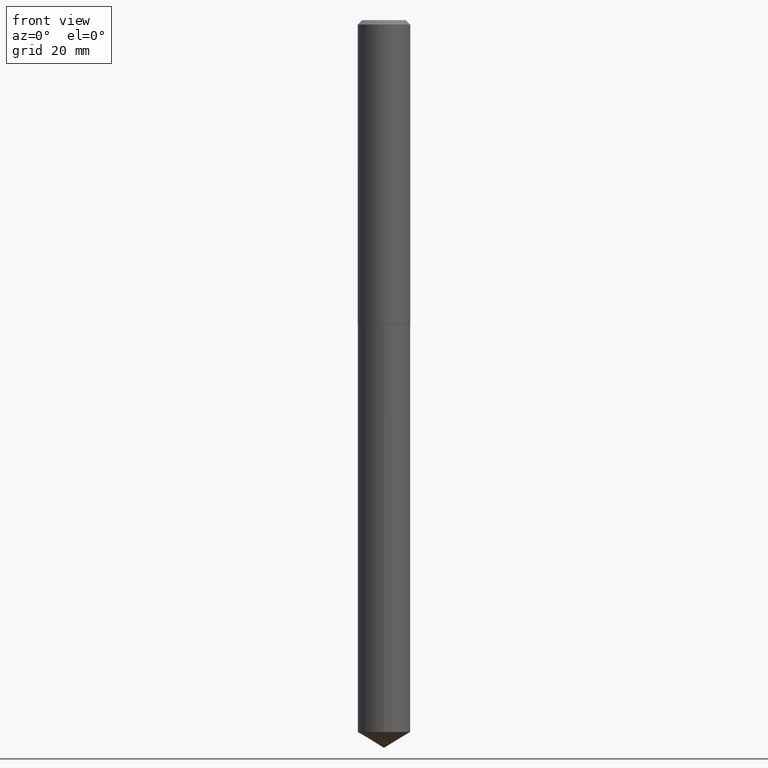
[diagram: clean part render]
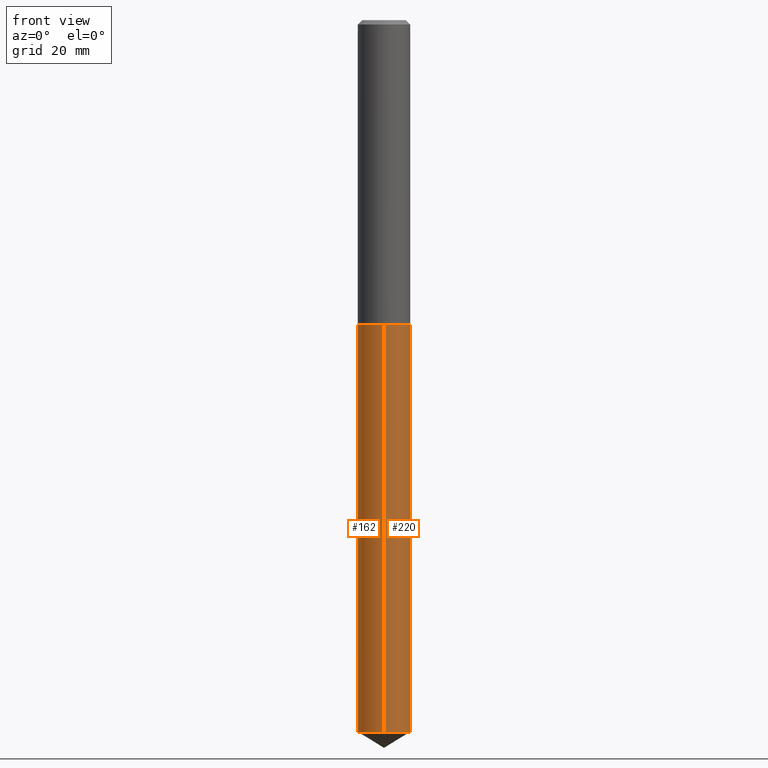
[diagram: same view with one multi-face feature highlighted, each face labeled with its STEP entity id]
A machine part, front view. The highlighted faces form ONE feature: a constant-radius fillet chain: 2 tangent blend faces with common blend radius 4.8006 mm. The faces share edges in the B-rep.
Their STEP definitions:
[1] entity #220 (Cylinder):
#10 = DIRECTION ( 'NONE',  ( -6.982962677686265922E-15, -1.000000000000000000, 2.890844437739961472E-15 ) ) ;
#23 = VECTOR ( 'NONE', #278, 39.37007874015748143 ) ;
#32 = VECTOR ( 'NONE', #142, 39.37007874015748143 ) ;
#37 = CARTESIAN_POINT ( 'NONE',  ( 5.353131216739265831E-29, -7.642852650727648702E-15, -2.189000000000000501 ) ) ;
#39 = VERTEX_POINT ( 'NONE', #165 ) ;
#42 = CYLINDRICAL_SURFACE ( 'NONE', #84, 0.1889999999999999736 ) ;
#57 = DIRECTION ( 'NONE',  ( -2.445443934232408407E-29, 3.491516956895075958E-15, 1.000000000000000000 ) ) ;
#75 = EDGE_CURVE ( 'NONE', #39, #219, #382, .T. ) ;
#84 = AXIS2_PLACEMENT_3D ( 'NONE', #164, #285, #10 ) ;
#85 = EDGE_CURVE ( 'NONE', #219, #94, #324, .T. ) ;
#91 = ORIENTED_EDGE ( 'NONE', *, *, #85, .T. ) ;
#94 = VERTEX_POINT ( 'NONE', #326 ) ;
#115 = DIRECTION ( 'NONE',  ( -6.982962677686265922E-15, -1.000000000000000000, 5.781688875479922944E-15 ) ) ;
#121 = ORIENTED_EDGE ( 'NONE', *, *, #376, .F. ) ;
#134 = CARTESIAN_POINT ( 'NONE',  ( 1.342925770586714198E-15, 0.1889999999999820990, -5.122637343003793475 ) ) ;
#142 = DIRECTION ( 'NONE',  ( -2.445443934232408127E-29, 3.491516956895075563E-15, 1.000000000000000000 ) ) ;
#149 = LINE ( 'NONE', #153, #23 ) ;
#153 = CARTESIAN_POINT ( 'NONE',  ( -1.319779946082650387E-15, -0.1890000000000076341, -2.189000000000000057 ) ) ;
#158 = EDGE_LOOP ( 'NONE', ( #390, #91, #329, #121 ) ) ;
#164 = CARTESIAN_POINT ( 'NONE',  ( 5.353131216739265831E-29, -7.642852650727648702E-15, -2.189000000000000501 ) ) ;
#165 = CARTESIAN_POINT ( 'NONE',  ( -1.319779946082578995E-15, -0.1890000000000179037, -5.122637343003791699 ) ) ;
#173 = CARTESIAN_POINT ( 'NONE',  ( 1.252717686242556790E-28, -1.788569717920600048E-14, -5.122637343003792587 ) ) ;
#176 = CIRCLE ( 'NONE', #342, 0.1889999999999999736 ) ;
#180 = CARTESIAN_POINT ( 'NONE',  ( -1.319779946082650387E-15, -0.1890000000000076341, -2.189000000000000057 ) ) ;
#193 = FACE_OUTER_BOUND ( 'NONE', #158, .T. ) ;
#218 = AXIS2_PLACEMENT_3D ( 'NONE', #173, #57, #115 ) ;
#219 = VERTEX_POINT ( 'NONE', #134 ) ;
#220 = ADVANCED_FACE ( 'NONE', ( #193 ), #42, .T. ) ;
#246 = DIRECTION ( 'NONE',  ( -2.445443934232408407E-29, 3.491516956895075958E-15, 1.000000000000000000 ) ) ;
#277 = VERTEX_POINT ( 'NONE', #180 ) ;
#278 = DIRECTION ( 'NONE',  ( -2.445443934232408127E-29, 3.491516956895075563E-15, 1.000000000000000000 ) ) ;
#285 = DIRECTION ( 'NONE',  ( -2.445443934232408407E-29, 3.491516956895075958E-15, 1.000000000000000000 ) ) ;
#296 = CARTESIAN_POINT ( 'NONE',  ( 1.342925770586642609E-15, 0.1889999999999923408, -2.189000000000000945 ) ) ;
#324 = LINE ( 'NONE', #296, #32 ) ;
#326 = CARTESIAN_POINT ( 'NONE',  ( 1.342925770586714592E-15, 0.1889999999999923408, -2.189000000000000945 ) ) ;
#329 = ORIENTED_EDGE ( 'NONE', *, *, #386, .F. ) ;
#342 = AXIS2_PLACEMENT_3D ( 'NONE', #37, #246, #360 ) ;
#360 = DIRECTION ( 'NONE',  ( -6.982962677686265922E-15, -1.000000000000000000, 2.890844437739961472E-15 ) ) ;
#376 = EDGE_CURVE ( 'NONE', #39, #277, #149, .T. ) ;
#382 = CIRCLE ( 'NONE', #218, 0.1889999999999999736 ) ;
#386 = EDGE_CURVE ( 'NONE', #277, #94, #176, .T. ) ;
#390 = ORIENTED_EDGE ( 'NONE', *, *, #75, .T. ) ;
[2] entity #162 (Cylinder):
#23 = VECTOR ( 'NONE', #278, 39.37007874015748143 ) ;
#32 = VECTOR ( 'NONE', #142, 39.37007874015748143 ) ;
#39 = VERTEX_POINT ( 'NONE', #165 ) ;
#43 = ORIENTED_EDGE ( 'NONE', *, *, #154, .F. ) ;
#64 = ORIENTED_EDGE ( 'NONE', *, *, #85, .F. ) ;
#73 = DIRECTION ( 'NONE',  ( -6.982962677686265922E-15, -1.000000000000000000, 5.781688875479922944E-15 ) ) ;
#85 = EDGE_CURVE ( 'NONE', #219, #94, #324, .T. ) ;
#86 = CARTESIAN_POINT ( 'NONE',  ( 5.353131216739265831E-29, -7.642852650727648702E-15, -2.189000000000000501 ) ) ;
#94 = VERTEX_POINT ( 'NONE', #326 ) ;
#126 = ORIENTED_EDGE ( 'NONE', *, *, #376, .T. ) ;
#134 = CARTESIAN_POINT ( 'NONE',  ( 1.342925770586714198E-15, 0.1889999999999820990, -5.122637343003793475 ) ) ;
#140 = CYLINDRICAL_SURFACE ( 'NONE', #281, 0.1889999999999999736 ) ;
#142 = DIRECTION ( 'NONE',  ( -2.445443934232408127E-29, 3.491516956895075563E-15, 1.000000000000000000 ) ) ;
#149 = LINE ( 'NONE', #153, #23 ) ;
#153 = CARTESIAN_POINT ( 'NONE',  ( -1.319779946082650387E-15, -0.1890000000000076341, -2.189000000000000057 ) ) ;
#154 = EDGE_CURVE ( 'NONE', #94, #277, #238, .T. ) ;
#162 = ADVANCED_FACE ( 'NONE', ( #172 ), #140, .T. ) ;
#165 = CARTESIAN_POINT ( 'NONE',  ( -1.319779946082578995E-15, -0.1890000000000179037, -5.122637343003791699 ) ) ;
#166 = DIRECTION ( 'NONE',  ( -6.982962677686265922E-15, -1.000000000000000000, 2.890844437739961472E-15 ) ) ;
#172 = FACE_OUTER_BOUND ( 'NONE', #372, .T. ) ;
#177 = EDGE_CURVE ( 'NONE', #219, #39, #188, .T. ) ;
#180 = CARTESIAN_POINT ( 'NONE',  ( -1.319779946082650387E-15, -0.1890000000000076341, -2.189000000000000057 ) ) ;
#183 = ORIENTED_EDGE ( 'NONE', *, *, #177, .T. ) ;
#188 = CIRCLE ( 'NONE', #327, 0.1889999999999999736 ) ;
#198 = CARTESIAN_POINT ( 'NONE',  ( 5.353131216739265831E-29, -7.642852650727648702E-15, -2.189000000000000501 ) ) ;
#219 = VERTEX_POINT ( 'NONE', #134 ) ;
#224 = DIRECTION ( 'NONE',  ( -2.445443934232408407E-29, 3.491516956895075958E-15, 1.000000000000000000 ) ) ;
#238 = CIRCLE ( 'NONE', #365, 0.1889999999999999736 ) ;
#255 = DIRECTION ( 'NONE',  ( -6.982962677686265922E-15, -1.000000000000000000, 2.890844437739961472E-15 ) ) ;
#277 = VERTEX_POINT ( 'NONE', #180 ) ;
#278 = DIRECTION ( 'NONE',  ( -2.445443934232408127E-29, 3.491516956895075563E-15, 1.000000000000000000 ) ) ;
#281 = AXIS2_PLACEMENT_3D ( 'NONE', #86, #224, #166 ) ;
#296 = CARTESIAN_POINT ( 'NONE',  ( 1.342925770586642609E-15, 0.1889999999999923408, -2.189000000000000945 ) ) ;
#324 = LINE ( 'NONE', #296, #32 ) ;
#326 = CARTESIAN_POINT ( 'NONE',  ( 1.342925770586714592E-15, 0.1889999999999923408, -2.189000000000000945 ) ) ;
#327 = AXIS2_PLACEMENT_3D ( 'NONE', #338, #377, #73 ) ;
#338 = CARTESIAN_POINT ( 'NONE',  ( 1.252717686242556790E-28, -1.788569717920600048E-14, -5.122637343003792587 ) ) ;
#348 = DIRECTION ( 'NONE',  ( -2.445443934232408407E-29, 3.491516956895075958E-15, 1.000000000000000000 ) ) ;
#365 = AXIS2_PLACEMENT_3D ( 'NONE', #198, #348, #255 ) ;
#372 = EDGE_LOOP ( 'NONE', ( #64, #183, #126, #43 ) ) ;
#376 = EDGE_CURVE ( 'NONE', #39, #277, #149, .T. ) ;
#377 = DIRECTION ( 'NONE',  ( -2.445443934232408407E-29, 3.491516956895075958E-15, 1.000000000000000000 ) ) ;